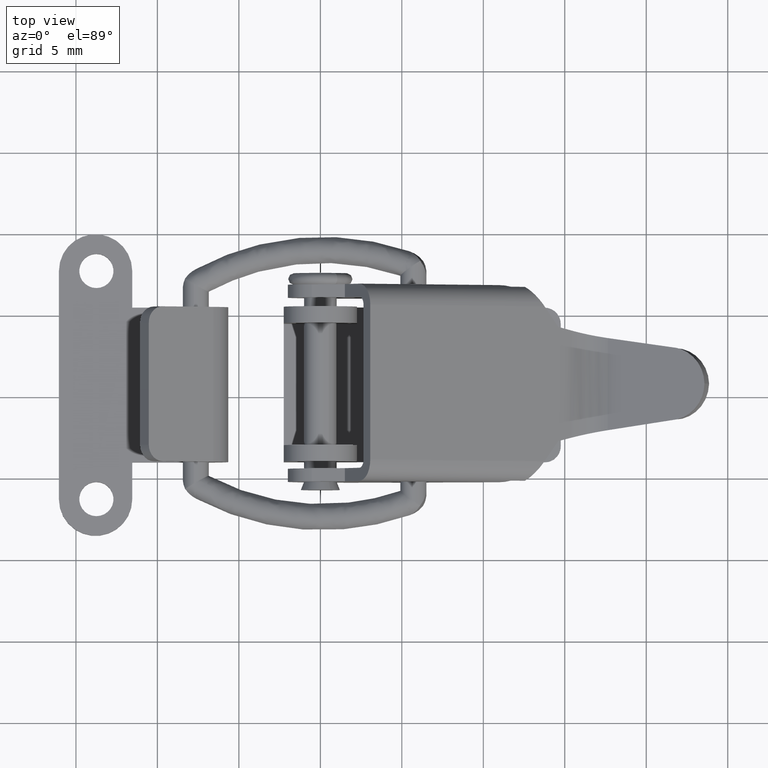
[diagram: clean part render]
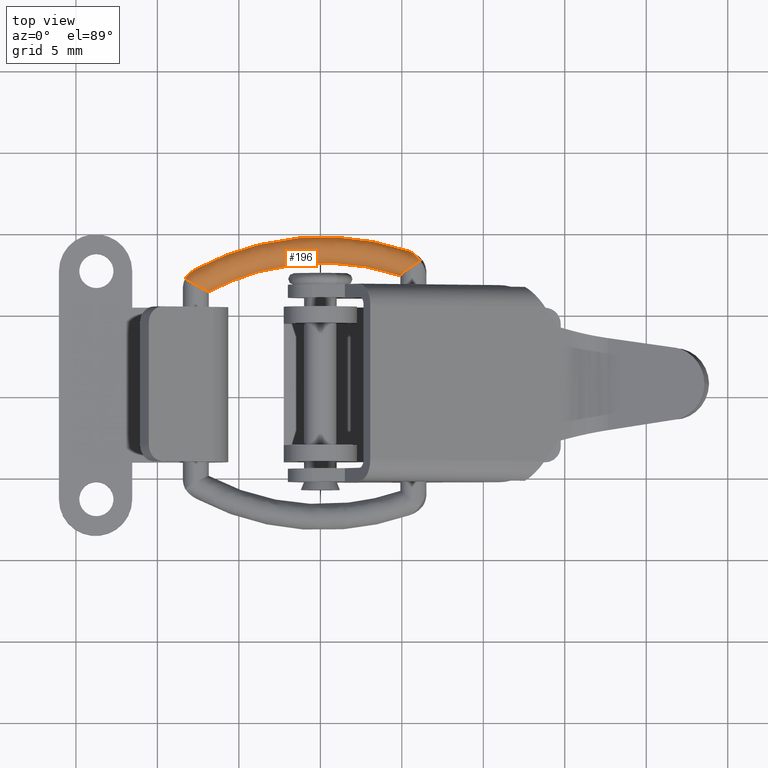
[diagram: same view with one face highlighted and labeled with its STEP entity id]
A machine part, top view. The second image highlights one B-rep face of the part: STEP entity #196.
In plain terms, the highlighted face is a freeform B-spline surface patch.
Its self-contained STEP definition (entity closure, byte-faithful):
#196=ADVANCED_FACE('',(#402),#401,.T.);
#401=( BOUNDED_SURFACE() B_SPLINE_SURFACE( 2,2,((#1522,#1523,#1524),(#1525,#1526,#1527),(#1528,#1529,#1530),(#1531,#1532,#1533),(#1534,#1535,#1536)), .UNSPECIFIED.,.F.,.F.,.F.) B_SPLINE_SURFACE_WITH_KNOTS((3,2,3),(3,3),(-3.14159265359E+00,-1.57079632679E+00,0.00000000000E+00),(0.00000000000E+00,1.11254687925E+00), .UNSPECIFIED. ) GEOMETRIC_REPRESENTATION_ITEM() RATIONAL_B_SPLINE_SURFACE(((1.00000000000E+00,8.49228720852E-01,1.00000000000E+00),(7.07106781187E-01,6.00495387293E-01,7.07106781187E-01),(1.00000000000E+00,8.49228720852E-01,1.00000000000E+00),(7.07106781187E-01,6.00495387293E-01,7.07106781187E-01),(1.00000000000E+00,8.49228720852E-01,1.00000000000E+00))) REPRESENTATION_ITEM('') SURFACE() );
#402=FACE_OUTER_BOUND('',#1537,.T.);
#1522=CARTESIAN_POINT('',(5.53806476484E+00,1.15317866269E-07,-1.61284007896E+00));
#1523=CARTESIAN_POINT('',(1.00522899911E+01,1.15317866269E-07,6.60951273079E+00));
#1524=CARTESIAN_POINT('',(4.67524919644E+00,1.15317866269E-07,1.42953924731E+01));
#1525=CARTESIAN_POINT('',(5.53806476484E+00,-7.99999884682E-01,-1.61284007896E+00));
#1526=CARTESIAN_POINT('',(1.00522899911E+01,-7.99999884682E-01,6.60951273079E+00));
#1527=CARTESIAN_POINT('',(4.67524919644E+00,-7.99999884682E-01,1.42953924731E+01));
#1528=CARTESIAN_POINT('',(6.23932788210E+00,-7.99999884682E-01,-1.99784662483E+00));
#1529=CARTESIAN_POINT('',(1.09929387317E+01,-7.99999884682E-01,6.66053074144E+00));
#1530=CARTESIAN_POINT('',(5.33075791903E+00,-7.99999884682E-01,1.47539863181E+01));
#1531=CARTESIAN_POINT('',(6.94059099937E+00,-7.99999884682E-01,-2.38285317070E+00));
#1532=CARTESIAN_POINT('',(1.19335874722E+01,-7.99999884682E-01,6.71154875209E+00));
#1533=CARTESIAN_POINT('',(5.98626664163E+00,-7.99999884682E-01,1.52125801630E+01));
#1534=CARTESIAN_POINT('',(6.94059099937E+00,1.15317866367E-07,-2.38285317070E+00));
#1535=CARTESIAN_POINT('',(1.19335874722E+01,1.15317866367E-07,6.71154875209E+00));
#1536=CARTESIAN_POINT('',(5.98626664163E+00,1.15317866367E-07,1.52125801630E+01));
#1537=EDGE_LOOP('',(#2264,#2265,#2266,#2267,#2268,#2269,#2270,#2271,#2272,#2273));
#2264=ORIENTED_EDGE('',*,*,#2862,.T.);
#2265=ORIENTED_EDGE('',*,*,#2849,.T.);
#2266=ORIENTED_EDGE('',*,*,#2874,.T.);
#2267=ORIENTED_EDGE('',*,*,#2875,.T.);
#2268=ORIENTED_EDGE('',*,*,#2876,.F.);
#2269=ORIENTED_EDGE('',*,*,#2873,.T.);
#2270=ORIENTED_EDGE('',*,*,#2872,.T.);
#2271=ORIENTED_EDGE('',*,*,#2844,.T.);
#2272=ORIENTED_EDGE('',*,*,#2843,.T.);
#2273=ORIENTED_EDGE('',*,*,#2877,.T.);
#2843=EDGE_CURVE('',#3171,#3164,#3172,.T.);
#2844=EDGE_CURVE('',#3150,#3171,#3178,.T.);
#2849=EDGE_CURVE('',#3184,#3206,#3213,.T.);
#2862=EDGE_CURVE('',#3303,#3184,#3304,.T.);
#2872=EDGE_CURVE('',#3369,#3150,#3370,.T.);
#2873=EDGE_CURVE('',#3343,#3369,#3376,.T.);
#2874=EDGE_CURVE('',#3206,#3382,#3383,.T.);
#2875=EDGE_CURVE('',#3382,#3389,#3390,.T.);
#2876=EDGE_CURVE('',#3343,#3389,#3396,.T.);
#2877=EDGE_CURVE('',#3164,#3303,#3402,.T.);
#3150=VERTEX_POINT('',#5209);
#3164=VERTEX_POINT('',#5223);
#3171=VERTEX_POINT('',#5230);
#3172=(BOUNDED_CURVE() B_SPLINE_CURVE(1,(#5231,#5232),.UNSPECIFIED.,.F.,.F.) B_SPLINE_CURVE_WITH_KNOTS((2,2),(0.00000000000E+00,5.00162760417E-01),.UNSPECIFIED.) CURVE() GEOMETRIC_REPRESENTATION_ITEM() RATIONAL_B_SPLINE_CURVE((1.00000000000E+00,1.00000000000E+00)) REPRESENTATION_ITEM('') );
#3178=(BOUNDED_CURVE() B_SPLINE_CURVE(3,(#5233,#5234,#5235,#5236,#5237,#5238),.UNSPECIFIED.,.F.,.F.) B_SPLINE_CURVE_WITH_KNOTS((4,2,4),(0.00000000000E+00,5.84048734399E-04,1.16809746880E-03),.UNSPECIFIED.) CURVE() GEOMETRIC_REPRESENTATION_ITEM() RATIONAL_B_SPLINE_CURVE((1.00000000000E+00,1.00000000000E+00,1.00000000000E+00,1.00000000000E+00,1.00000000000E+00,1.00000000000E+00)) REPRESENTATION_ITEM('') );
#3184=VERTEX_POINT('',#5239);
#3206=VERTEX_POINT('',#5258);
#3213=(BOUNDED_CURVE() B_SPLINE_CURVE(3,(#5265,#5266,#5267,#5268,#5269,#5270),.UNSPECIFIED.,.F.,.F.) B_SPLINE_CURVE_WITH_KNOTS((4,2,4),(2.72844862456E-17,5.07102884845E-04,1.01420576969E-03),.UNSPECIFIED.) CURVE() GEOMETRIC_REPRESENTATION_ITEM() RATIONAL_B_SPLINE_CURVE((1.00000000000E+00,1.00000000000E+00,1.00000000000E+00,1.00000000000E+00,1.00000000000E+00,1.00000000000E+00)) REPRESENTATION_ITEM('') );
#3303=VERTEX_POINT('',#5336);
#3304=(BOUNDED_CURVE() B_SPLINE_CURVE(3,(#5337,#5338,#5339,#5340),.UNSPECIFIED.,.F.,.F.) B_SPLINE_CURVE_WITH_KNOTS((4,4),(3.31604796190E-05,4.97407194271E-05),.UNSPECIFIED.) CURVE() GEOMETRIC_REPRESENTATION_ITEM() RATIONAL_B_SPLINE_CURVE((1.00000000000E+00,1.00000000000E+00,1.00000000000E+00,1.00000000000E+00)) REPRESENTATION_ITEM('') );
#3343=VERTEX_POINT('',#5372);
#3369=VERTEX_POINT('',#5392);
#3370=(BOUNDED_CURVE() B_SPLINE_CURVE(3,(#5393,#5394,#5395,#5396,#5397,#5398),.UNSPECIFIED.,.F.,.F.) B_SPLINE_CURVE_WITH_KNOTS((4,2,4),(-6.53543441556E-04,-3.26771720778E-04,-2.42434975903E-19),.UNSPECIFIED.) CURVE() GEOMETRIC_REPRESENTATION_ITEM() RATIONAL_B_SPLINE_CURVE((1.00000000000E+00,1.00000000000E+00,1.00000000000E+00,1.00000000000E+00,1.00000000000E+00,1.00000000000E+00)) REPRESENTATION_ITEM('') );
#3376=(BOUNDED_CURVE() B_SPLINE_CURVE(3,(#5399,#5400,#5401,#5402,#5403,#5404,#5405,#5406),.UNSPECIFIED.,.F.,.F.) B_SPLINE_CURVE_WITH_KNOTS((4,2,2,4),(2.59891124676E-06,3.51335127962E-04,7.00071344677E-04,1.39754377811E-03),.UNSPECIFIED.) CURVE() GEOMETRIC_REPRESENTATION_ITEM() RATIONAL_B_SPLINE_CURVE((1.00000000000E+00,1.00000000000E+00,1.00000000000E+00,1.00000000000E+00,1.00000000000E+00,1.00000000000E+00,1.00000000000E+00,1.00000000000E+00)) REPRESENTATION_ITEM('') );
#3382=VERTEX_POINT('',#5407);
#3383=(BOUNDED_CURVE() B_SPLINE_CURVE(3,(#5408,#5409,#5410,#5411,#5412,#5413,#5414,#5415),.UNSPECIFIED.,.F.,.F.) B_SPLINE_CURVE_WITH_KNOTS((4,2,2,4),(0.00000000000E+00,3.63753038687E-04,5.45629558031E-04,7.27506077374E-04),.UNSPECIFIED.) CURVE() GEOMETRIC_REPRESENTATION_ITEM() RATIONAL_B_SPLINE_CURVE((1.00000000000E+00,1.00000000000E+00,1.00000000000E+00,1.00000000000E+00,1.00000000000E+00,1.00000000000E+00,1.00000000000E+00,1.00000000000E+00)) REPRESENTATION_ITEM('') );
#3389=VERTEX_POINT('',#5416);
#3390=(BOUNDED_CURVE() B_SPLINE_CURVE(3,(#5417,#5418,#5419,#5420,#5421,#5422,#5423,#5424,#5425,#5426),.UNSPECIFIED.,.F.,.F.) B_SPLINE_CURVE_WITH_KNOTS((4,2,2,2,4),(-1.35799384382E-03,-1.01913221006E-03,-6.80270576297E-04,-3.41408942537E-04,7.89219516045E-10),.UNSPECIFIED.) CURVE() GEOMETRIC_REPRESENTATION_ITEM() RATIONAL_B_SPLINE_CURVE((1.00000000000E+00,1.00000000000E+00,1.00000000000E+00,1.00000000000E+00,1.00000000000E+00,1.00000000000E+00,1.00000000000E+00,1.00000000000E+00,1.00000000000E+00,1.00000000000E+00)) REPRESENTATION_ITEM('') );
#3396=(BOUNDED_CURVE() B_SPLINE_CURVE(2,(#5427,#5428,#5429),.UNSPECIFIED.,.F.,.F.) B_SPLINE_CURVE_WITH_KNOTS((3,3),(1.80283738841E-01,9.84014683187E-01),.UNSPECIFIED.) CURVE() GEOMETRIC_REPRESENTATION_ITEM() RATIONAL_B_SPLINE_CURVE((9.59054418327E-01,8.85433943611E-01,9.69187603195E-01)) REPRESENTATION_ITEM('') );
#3402=(BOUNDED_CURVE() B_SPLINE_CURVE(2,(#5430,#5431,#5432),.UNSPECIFIED.,.F.,.F.) B_SPLINE_CURVE_WITH_KNOTS((3,3),(1.79495590041E-01,9.84189237674E-01),.UNSPECIFIED.) CURVE() GEOMETRIC_REPRESENTATION_ITEM() RATIONAL_B_SPLINE_CURVE((9.59198956008E-01,8.85335791277E-01,9.69223989899E-01)) REPRESENTATION_ITEM('') );
#5209=CARTESIAN_POINT('',(7.51268353712E+00,-6.12896714834E-01,-5.14157053428E-01));
#5223=CARTESIAN_POINT('',(8.11096534889E+00,1.15317866367E-07,2.73562017377E-01));
#5230=CARTESIAN_POINT('',(8.11091997190E+00,-8.75303721341E-03,2.73577319518E-01));
#5231=CARTESIAN_POINT('',(8.11091997190E+00,-8.75303721341E-03,2.73577319518E-01));
#5232=CARTESIAN_POINT('',(8.11096534889E+00,1.15317866367E-07,2.73562017377E-01));
#5233=CARTESIAN_POINT('',(7.51268353712E+00,-6.12896714834E-01,-5.14157053428E-01));
#5234=CARTESIAN_POINT('',(7.66011356790E+00,-5.30549755764E-01,-4.11766732864E-01));
#5235=CARTESIAN_POINT('',(7.78059190125E+00,-4.34498119605E-01,-2.92754016062E-01));
#5236=CARTESIAN_POINT('',(7.98085994609E+00,-2.27158269064E-01,-2.53086611626E-02));
#5237=CARTESIAN_POINT('',(8.05714680657E+00,-1.18634597735E-01,1.19239460503E-01));
#5238=CARTESIAN_POINT('',(8.11091997190E+00,-8.75303721396E-03,2.73577319519E-01));
#5239=CARTESIAN_POINT('',(7.05513743852E+00,-1.31658946518E-02,1.34652377270E+01));
#5258=CARTESIAN_POINT('',(6.45758637680E+00,-5.49698301670E-01,1.40812328710E+01));
#5265=CARTESIAN_POINT('',(7.05513743852E+00,-1.31658946519E-02,1.34652377270E+01));
#5266=CARTESIAN_POINT('',(6.98705502016E+00,-1.08864241018E-01,1.35902513686E+01));
#5267=CARTESIAN_POINT('',(6.90387580261E+00,-2.02636830486E-01,1.37041251854E+01));
#5268=CARTESIAN_POINT('',(6.70581762830E+00,-3.83550223287E-01,1.39106696709E+01));
#5269=CARTESIAN_POINT('',(6.58968834045E+00,-4.71555091475E-01,1.40039948119E+01));
#5270=CARTESIAN_POINT('',(6.45758637680E+00,-5.49698301670E-01,1.40812328710E+01));
#5336=CARTESIAN_POINT('',(7.06306413728E+00,1.15317866367E-07,1.34505045642E+01));
#5337=CARTESIAN_POINT('',(7.06306413728E+00,1.15317866367E-07,1.34505045642E+01));
#5338=CARTESIAN_POINT('',(7.06085357633E+00,-1.20594734659E-02,1.34545870320E+01));
#5339=CARTESIAN_POINT('',(7.05855588204E+00,-1.49941651344E-02,1.34588682516E+01));
#5340=CARTESIAN_POINT('',(7.05513743852E+00,-1.31658946521E-02,1.34652377270E+01));
#5372=CARTESIAN_POINT('',(6.60000312230E+00,-2.64039808684E-03,7.99995642294E-01));
#5392=CARTESIAN_POINT('',(7.16228313166E+00,-7.99999884682E-01,-1.13841228111E-14));
#5393=CARTESIAN_POINT('',(7.16228313166E+00,-7.99999884682E-01,-1.70706583500E-14));
#5394=CARTESIAN_POINT('',(7.22411168683E+00,-7.99999884682E-01,-8.96756386147E-02));
#5395=CARTESIAN_POINT('',(7.28782814759E+00,-7.84318829831E-01,-1.82667674154E-01));
#5396=CARTESIAN_POINT('',(7.40623066374E+00,-7.22094578548E-01,-3.56514992660E-01));
#5397=CARTESIAN_POINT('',(7.46167924535E+00,-6.76412498806E-01,-4.38443567828E-01));
#5398=CARTESIAN_POINT('',(7.51268353712E+00,-6.12896714834E-01,-5.14157053428E-01));
#5399=CARTESIAN_POINT('',(6.60000312230E+00,-2.64039808684E-03,7.99995642294E-01));
#5400=CARTESIAN_POINT('',(6.60028241782E+00,-1.20724234869E-01,7.99605887728E-01));
#5401=CARTESIAN_POINT('',(6.61946528405E+00,-2.35144267520E-01,7.72877089370E-01));
#5402=CARTESIAN_POINT('',(6.68709054791E+00,-4.39000725405E-01,6.78166747856E-01));
#5403=CARTESIAN_POINT('',(6.73460199291E+00,-5.25947457533E-01,6.11444670202E-01));
#5404=CARTESIAN_POINT('',(6.89607249282E+00,-7.31519994767E-01,3.83171064883E-01));
#5405=CARTESIAN_POINT('',(7.03029419685E+00,-7.99999884682E-01,1.91392869140E-01));
#5406=CARTESIAN_POINT('',(7.16228313166E+00,-7.99999884682E-01,-1.71303943253E-14));
#5407=CARTESIAN_POINT('',(6.12350473050E+00,-7.99999884682E-01,1.35000000000E+01));
#5408=CARTESIAN_POINT('',(6.45758637680E+00,-5.49698301670E-01,1.40812328710E+01));
#5409=CARTESIAN_POINT('',(6.41281216537E+00,-6.33049274928E-01,1.40024040898E+01));
#5410=CARTESIAN_POINT('',(6.36029194447E+00,-6.95196473133E-01,1.39103242519E+01));
#5411=CARTESIAN_POINT('',(6.27456912329E+00,-7.58135088130E-01,1.37610504835E+01));
#5412=CARTESIAN_POINT('',(6.24525847807E+00,-7.73718461295E-01,1.37101627203E+01));
#5413=CARTESIAN_POINT('',(6.18521652891E+00,-7.94679840816E-01,1.36062665600E+01));
#5414=CARTESIAN_POINT('',(6.15368450577E+00,-8.00000000173E-01,1.35525800600E+01));
#5415=CARTESIAN_POINT('',(6.12350473050E+00,-8.00000000173E-01,1.35000000000E+01));
#5416=CARTESIAN_POINT('',(5.65000004572E+00,1.15047961585E-07,1.27000000707E+01));
#5417=CARTESIAN_POINT('',(6.12350473050E+00,-8.00000000000E-01,1.35000000000E+01));
#5418=CARTESIAN_POINT('',(6.06726598700E+00,-8.00000000000E-01,1.34020414135E+01));
#5419=CARTESIAN_POINT('',(6.01016214431E+00,-7.82336720985E-01,1.33057798184E+01));
#5420=CARTESIAN_POINT('',(5.90145842926E+00,-7.11528731647E-01,1.31211872868E+01));
#5421=CARTESIAN_POINT('',(5.84953618739E+00,-6.58117507291E-01,1.30335926586E+01));
#5422=CARTESIAN_POINT('',(5.75915696244E+00,-5.18179194599E-01,1.28818214242E+01));
#5423=CARTESIAN_POINT('',(5.72016251030E+00,-4.30601720415E-01,1.28167334886E+01));
#5424=CARTESIAN_POINT('',(5.66534182091E+00,-2.28739694072E-01,1.27254362047E+01));
#5425=CARTESIAN_POINT('',(5.65022590538E+00,-1.17277034504E-01,1.27003750162E+01));
#5426=CARTESIAN_POINT('',(5.65000083930E+00,-1.72436357378E-03,1.27000013933E+01));
#5427=CARTESIAN_POINT('',(6.59999898634E+00,1.15317866269E-07,7.99997012599E-01));
#5428=CARTESIAN_POINT('',(8.68834945270E+00,1.15317866269E-07,6.95463542523E+00));
#5429=CARTESIAN_POINT('',(5.64999999400E+00,1.15317866269E-07,1.27000000114E+01));
#5430=CARTESIAN_POINT('',(8.11096534889E+00,1.15317866367E-07,2.73562017377E-01));
#5431=CARTESIAN_POINT('',(1.04291419550E+01,1.15317866367E-07,7.08805450459E+00));
#5432=CARTESIAN_POINT('',(7.06306413728E+00,1.15317866367E-07,1.34505045642E+01));